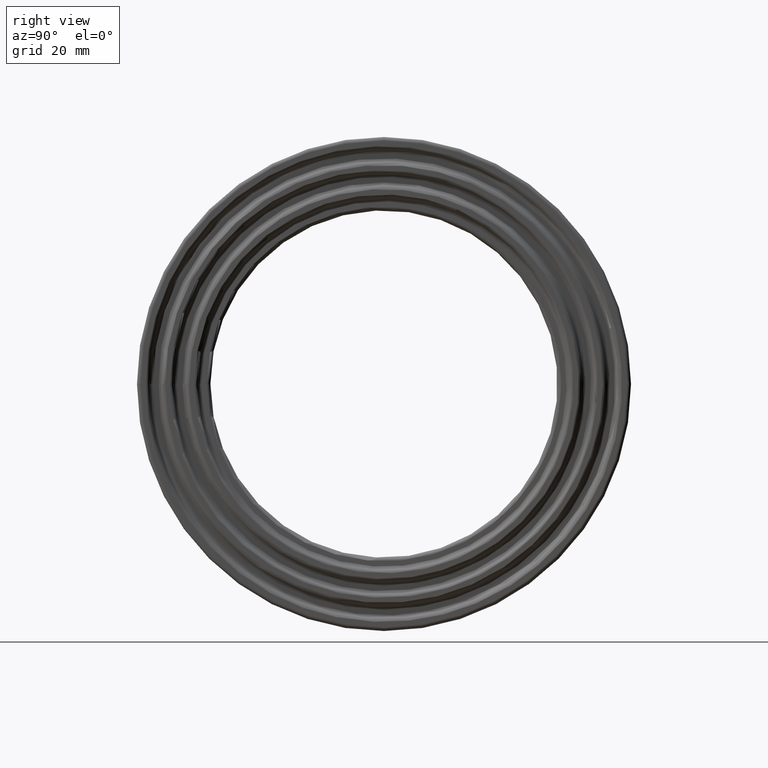
[diagram: clean part render]
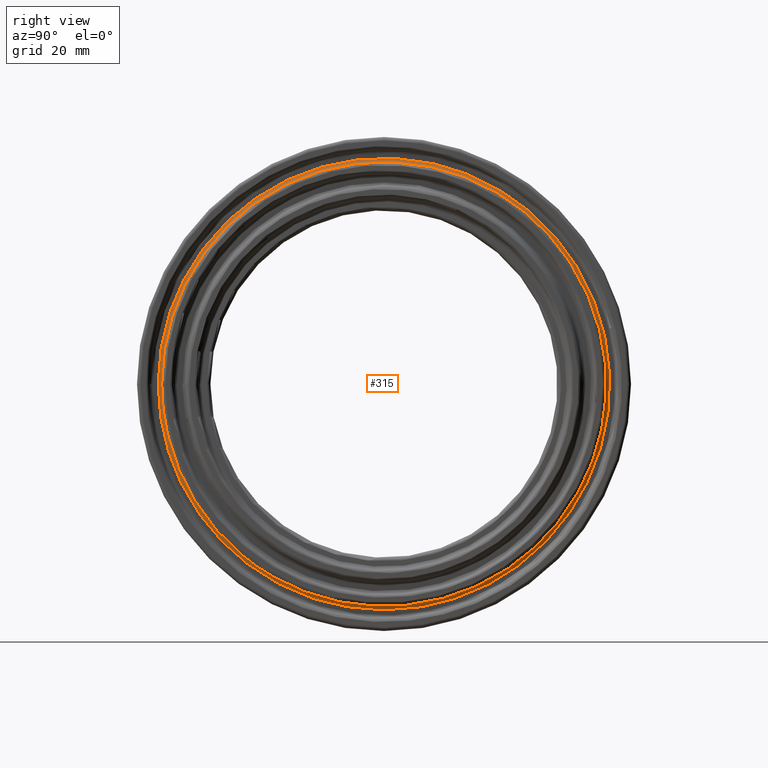
[diagram: same view with one face highlighted and labeled with its STEP entity id]
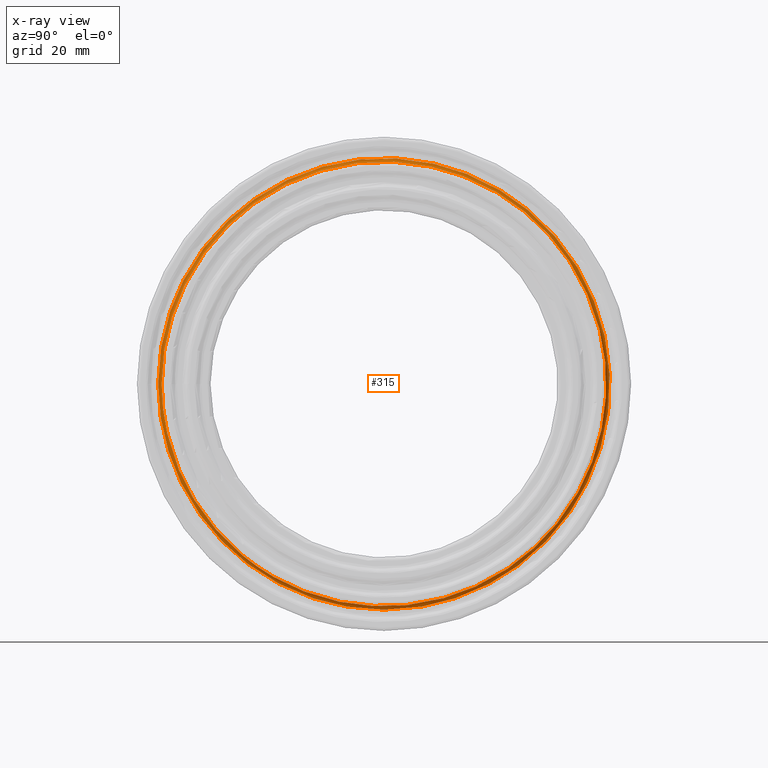
[diagram: x-ray of the same camera — body ghosted, the highlighted face saturated]
A machine part, right view. The second image highlights one B-rep face of the part: STEP entity #315.
The next image is the same camera in x-ray: the body ghosted, the highlighted face saturated — about 0% of this face is hidden behind the body in this view.
In plain terms, the highlighted face is a freeform B-spline surface patch.
Its self-contained STEP definition (entity closure, byte-faithful):
#17=B_SPLINE_SURFACE_WITH_KNOTS('',3,3,((#1210,#1211,#1212,#1213,#1214,
#1215,#1216,#1217,#1218,#1219,#1220,#1221,#1222,#1223,#1224,#1225,#1226,
#1227,#1228,#1229,#1230,#1231,#1232,#1233,#1234,#1235,#1236,#1237,#1238,
#1239,#1240,#1241,#1242,#1243,#1244,#1245,#1246,#1247,#1248,#1249,#1250,
#1251,#1252,#1253,#1254,#1255,#1256),(#1257,#1258,#1259,#1260,#1261,#1262,
#1263,#1264,#1265,#1266,#1267,#1268,#1269,#1270,#1271,#1272,#1273,#1274,
#1275,#1276,#1277,#1278,#1279,#1280,#1281,#1282,#1283,#1284,#1285,#1286,
#1287,#1288,#1289,#1290,#1291,#1292,#1293,#1294,#1295,#1296,#1297,#1298,
#1299,#1300,#1301,#1302,#1303),(#1304,#1305,#1306,#1307,#1308,#1309,#1310,
#1311,#1312,#1313,#1314,#1315,#1316,#1317,#1318,#1319,#1320,#1321,#1322,
#1323,#1324,#1325,#1326,#1327,#1328,#1329,#1330,#1331,#1332,#1333,#1334,
#1335,#1336,#1337,#1338,#1339,#1340,#1341,#1342,#1343,#1344,#1345,#1346,
#1347,#1348,#1349,#1350),(#1351,#1352,#1353,#1354,#1355,#1356,#1357,#1358,
#1359,#1360,#1361,#1362,#1363,#1364,#1365,#1366,#1367,#1368,#1369,#1370,
#1371,#1372,#1373,#1374,#1375,#1376,#1377,#1378,#1379,#1380,#1381,#1382,
#1383,#1384,#1385,#1386,#1387,#1388,#1389,#1390,#1391,#1392,#1393,#1394,
#1395,#1396,#1397),(#1398,#1399,#1400,#1401,#1402,#1403,#1404,#1405,#1406,
#1407,#1408,#1409,#1410,#1411,#1412,#1413,#1414,#1415,#1416,#1417,#1418,
#1419,#1420,#1421,#1422,#1423,#1424,#1425,#1426,#1427,#1428,#1429,#1430,
#1431,#1432,#1433,#1434,#1435,#1436,#1437,#1438,#1439,#1440,#1441,#1442,
#1443,#1444)),.UNSPECIFIED.,.F.,.T.,.F.,(4,1,4),(4,1,1,1,1,1,1,1,1,1,1,
1,1,1,1,1,1,1,1,1,1,1,1,1,1,1,1,1,1,1,1,1,1,1,1,1,1,1,1,1,1,1,1,1,4),(0.,
0.5,1.),(-24.1155685098152,-22.3930279019712,-21.5317575980493,-20.6704872941273,
-18.9479466862834,-17.2254060784394,-15.5028654705955,-14.6415951666735,
-13.7803248627515,-12.4884194068686,-11.1965139509856,-10.3352436470636,
-9.18688324183435,-8.03852283660506,-7.32079758333675,-6.89016243137577,
-5.74180202614647,-3.44508121568788,-3.15799111438056,-2.29672081045859,
-1.14836040522929,1.1483604052293,3.44508121568789,3.66039879166838,4.30635151960986,
5.16762182353183,6.89016243137577,7.32079758333675,8.61270303921971,10.3352436470637,
12.0577842549076,12.2731018308881,12.9190545588296,13.7803248627515,14.6415951666735,
15.1798891066247,15.5028654705955,17.2254060784394,18.0866763823614,18.3019939583419,
18.9479466862834,20.6704872941273,22.3930279019712,22.8236630539322,24.1155685098152),
 .UNSPECIFIED.);
#29=B_SPLINE_CURVE_WITH_KNOTS('',3,(#1163,#1164,#1165,#1166,#1167,#1168,
#1169,#1170,#1171,#1172,#1173,#1174,#1175,#1176,#1177,#1178,#1179,#1180,
#1181,#1182,#1183,#1184,#1185,#1186,#1187,#1188,#1189,#1190,#1191,#1192,
#1193,#1194,#1195,#1196,#1197,#1198,#1199,#1200,#1201,#1202,#1203,#1204,
#1205,#1206,#1207,#1208,#1209),.UNSPECIFIED.,.T.,.F.,(4,1,1,1,1,1,1,1,1,
1,1,1,1,1,1,1,1,1,1,1,1,1,1,1,1,1,1,1,1,1,1,1,1,1,1,1,1,1,1,1,1,1,1,1,4),
(-24.1155685098152,-22.3930279019712,-21.5317575980493,-20.6704872941273,
-18.9479466862834,-17.2254060784394,-15.5028654705955,-14.6415951666735,
-13.7803248627515,-12.4884194068686,-11.1965139509856,-10.3352436470636,
-9.18688324183435,-8.03852283660506,-7.32079758333675,-6.89016243137577,
-5.74180202614647,-3.44508121568788,-3.15799111438056,-2.29672081045859,
-1.14836040522929,1.1483604052293,3.44508121568789,3.66039879166838,4.30635151960986,
5.16762182353183,6.89016243137577,7.32079758333675,8.61270303921971,10.3352436470637,
12.0577842549076,12.2731018308881,12.9190545588296,13.7803248627515,14.6415951666735,
15.1798891066247,15.5028654705955,17.2254060784394,18.0866763823614,18.3019939583419,
18.9479466862834,20.6704872941273,22.3930279019712,22.8236630539322,24.1155685098152),
 .UNSPECIFIED.);
#30=B_SPLINE_CURVE_WITH_KNOTS('',3,(#1447,#1448,#1449,#1450,#1451,#1452,
#1453,#1454,#1455,#1456,#1457,#1458,#1459,#1460,#1461,#1462,#1463,#1464,
#1465,#1466,#1467,#1468,#1469,#1470,#1471,#1472,#1473,#1474,#1475,#1476,
#1477,#1478,#1479,#1480,#1481,#1482,#1483,#1484,#1485,#1486,#1487,#1488,
#1489,#1490,#1491,#1492,#1493),.UNSPECIFIED.,.T.,.F.,(4,1,1,1,1,1,1,1,1,
1,1,1,1,1,1,1,1,1,1,1,1,1,1,1,1,1,1,1,1,1,1,1,1,1,1,1,1,1,1,1,1,1,1,1,4),
(-24.1155685098152,-22.8236630539322,-22.3930279019712,-20.6704872941273,
-18.9479466862834,-18.3019939583419,-18.0866763823614,-17.2254060784394,
-15.5028654705955,-15.1798891066247,-14.6415951666735,-13.7803248627515,
-12.9190545588296,-12.2731018308881,-12.0577842549076,-10.3352436470637,
-8.61270303921971,-7.32079758333675,-6.89016243137577,-5.16762182353183,
-4.30635151960986,-3.66039879166838,-3.44508121568789,-1.1483604052293,
1.14836040522929,2.29672081045859,3.15799111438056,3.44508121568788,5.74180202614647,
6.89016243137577,7.32079758333675,8.03852283660506,9.18688324183435,10.3352436470636,
11.1965139509856,12.4884194068686,13.7803248627515,14.6415951666735,15.5028654705955,
17.2254060784394,18.9479466862834,20.6704872941273,21.5317575980493,22.3930279019712,
24.1155685098152),.UNSPECIFIED.);
#76=FACE_OUTER_BOUND('',#112,.T.);
#112=EDGE_LOOP('',(#253,#254,#255,#256));
#153=CIRCLE('',#351,1.25);
#179=VERTEX_POINT('',#1162);
#180=VERTEX_POINT('',#1445);
#209=EDGE_CURVE('',#179,#179,#29,.T.);
#210=EDGE_CURVE('',#179,#180,#153,.T.);
#211=EDGE_CURVE('',#180,#180,#30,.T.);
#253=ORIENTED_EDGE('',*,*,#210,.T.);
#254=ORIENTED_EDGE('',*,*,#211,.T.);
#255=ORIENTED_EDGE('',*,*,#210,.F.);
#256=ORIENTED_EDGE('',*,*,#209,.T.);
#315=ADVANCED_FACE('',(#76),#17,.T.);
#351=AXIS2_PLACEMENT_3D('',#1446,#415,#416);
#415=DIRECTION('center_axis',(0.,-0.000811828910623998,-0.999999670466856));
#416=DIRECTION('ref_axis',(-1.,0.,0.));
#1162=CARTESIAN_POINT('',(72.35,-77.2260381405542,0.0626943510752625));
#1163=CARTESIAN_POINT('Ctrl Pts',(72.35,-77.2257156556611,0.0655019064221409));
#1164=CARTESIAN_POINT('Ctrl Pts',(72.3500000000001,-77.2302131311799,-5.68484195212505));
#1165=CARTESIAN_POINT('Ctrl Pts',(72.3499999999999,-76.2759837863428,-14.349728647965));
#1166=CARTESIAN_POINT('Ctrl Pts',(72.3500000000001,-73.0477982730282,-25.5362169259614));
#1167=CARTESIAN_POINT('Ctrl Pts',(72.3499999999999,-68.676247152644,-36.1502139957239));
#1168=CARTESIAN_POINT('Ctrl Pts',(72.35,-60.8863324680431,-48.5517539542782));
#1169=CARTESIAN_POINT('Ctrl Pts',(72.35,-48.6387608700585,-60.8200987012577));
#1170=CARTESIAN_POINT('Ctrl Pts',(72.35,-36.2541099509333,-68.6199505065521));
#1171=CARTESIAN_POINT('Ctrl Pts',(72.3500000000001,-25.6199601676104,-73.0197607564574));
#1172=CARTESIAN_POINT('Ctrl Pts',(72.3499999999999,-15.8891175684609,-75.842078857682));
#1173=CARTESIAN_POINT('Ctrl Pts',(72.35,-4.34068847311276,-77.467626011477));
#1174=CARTESIAN_POINT('Ctrl Pts',(72.35,7.15946256221033,-77.1502266518685));
#1175=CARTESIAN_POINT('Ctrl Pts',(72.35,18.1607999307512,-75.292438574589));
#1176=CARTESIAN_POINT('Ctrl Pts',(72.3500000000001,28.3098901432782,-72.1576713616281));
#1177=CARTESIAN_POINT('Ctrl Pts',(72.35,37.3976681831924,-67.7862415920244));
#1178=CARTESIAN_POINT('Ctrl Pts',(72.35,43.9272246594291,-63.6086484939368));
#1179=CARTESIAN_POINT('Ctrl Pts',(72.3500000000001,50.1063136995343,-58.9505452621727));
#1180=CARTESIAN_POINT('Ctrl Pts',(72.3499999999999,59.6096525767822,-50.1540941798703));
#1181=CARTESIAN_POINT('Ctrl Pts',(72.35,66.7989397700751,-39.6260962538946));
#1182=CARTESIAN_POINT('Ctrl Pts',(72.35,71.5976136460745,-29.1430733940314));
#1183=CARTESIAN_POINT('Ctrl Pts',(72.35,74.2746651286182,-21.9522164460747));
#1184=CARTESIAN_POINT('Ctrl Pts',(72.3499999999999,77.5190896151062,-7.73919106076682));
#1185=CARTESIAN_POINT('Ctrl Pts',(72.35,77.5043926151827,11.62754337218));
#1186=CARTESIAN_POINT('Ctrl Pts',(72.35,72.7432105311623,27.1647975873435));
#1187=CARTESIAN_POINT('Ctrl Pts',(72.35,68.0471640332779,36.6057048643624));
#1188=CARTESIAN_POINT('Ctrl Pts',(72.35,65.1966098409544,41.6294082046029));
#1189=CARTESIAN_POINT('Ctrl Pts',(72.35,58.890210654922,50.5435382634758));
#1190=CARTESIAN_POINT('Ctrl Pts',(72.35,51.7390189063391,57.7100475124357));
#1191=CARTESIAN_POINT('Ctrl Pts',(72.35,42.5257262787719,64.6757478665368));
#1192=CARTESIAN_POINT('Ctrl Pts',(72.3499999999999,32.480407392815,70.6130122056103));
#1193=CARTESIAN_POINT('Ctrl Pts',(72.3500000000001,17.5040350034716,75.8822086601284));
#1194=CARTESIAN_POINT('Ctrl Pts',(72.35,5.12296884717933,77.3071380082777));
#1195=CARTESIAN_POINT('Ctrl Pts',(72.35,-3.49835486988401,77.188609518118));
#1196=CARTESIAN_POINT('Ctrl Pts',(72.35,-9.24125811546841,76.798277196346));
#1197=CARTESIAN_POINT('Ctrl Pts',(72.35,-17.1164223076368,75.4726265108081));
#1198=CARTESIAN_POINT('Ctrl Pts',(72.35,-24.4412397001347,73.3721750113236));
#1199=CARTESIAN_POINT('Ctrl Pts',(72.35,-29.8244836980005,71.2783934987796));
#1200=CARTESIAN_POINT('Ctrl Pts',(72.3500000000001,-37.6668459224763,67.7181692907764));
#1201=CARTESIAN_POINT('Ctrl Pts',(72.3499999999999,-46.0278430836225,62.4878818252415));
#1202=CARTESIAN_POINT('Ctrl Pts',(72.35,-53.0549394928554,56.2129109843134));
#1203=CARTESIAN_POINT('Ctrl Pts',(72.35,-57.0646021880887,52.0967688085544));
#1204=CARTESIAN_POINT('Ctrl Pts',(72.35,-62.7488383327838,45.5832530082079));
#1205=CARTESIAN_POINT('Ctrl Pts',(72.35,-70.1551298246211,33.8122560300906));
#1206=CARTESIAN_POINT('Ctrl Pts',(72.35,-74.4481170744449,21.5587235784817));
#1207=CARTESIAN_POINT('Ctrl Pts',(72.35,-76.7349457786991,10.1711583692102));
#1208=CARTESIAN_POINT('Ctrl Pts',(72.35,-77.222342549022,4.37825980033252));
#1209=CARTESIAN_POINT('Ctrl Pts',(72.35,-77.2257156556611,0.0655019064221409));
#1210=CARTESIAN_POINT('Ctrl Pts',(73.175,-76.050189157338,0.0645048392400997));
#1211=CARTESIAN_POINT('Ctrl Pts',(73.175,-76.0546181724793,-5.5983075341949));
#1212=CARTESIAN_POINT('Ctrl Pts',(73.175,-75.1149140653925,-14.1312977001103));
#1213=CARTESIAN_POINT('Ctrl Pts',(73.1750000000001,-71.9358678521178,-25.1475057381332));
#1214=CARTESIAN_POINT('Ctrl Pts',(73.1749999999999,-67.6308602935142,-35.599937004294));
#1215=CARTESIAN_POINT('Ctrl Pts',(73.1750000000001,-59.9595233527864,-47.8127012588288));
#1216=CARTESIAN_POINT('Ctrl Pts',(73.175,-47.8983837591063,-59.8942977935297));
#1217=CARTESIAN_POINT('Ctrl Pts',(73.175,-35.7022514597738,-67.5754205925303));
#1218=CARTESIAN_POINT('Ctrl Pts',(73.175,-25.2299742437856,-71.9082571214097));
#1219=CARTESIAN_POINT('Ctrl Pts',(73.175,-15.647254109144,-74.6876140187591));
#1220=CARTESIAN_POINT('Ctrl Pts',(73.1750000000001,-4.27461470121194,-76.2884171641972));
#1221=CARTESIAN_POINT('Ctrl Pts',(73.1749999999999,7.05048153323344,-75.975849243891));
#1222=CARTESIAN_POINT('Ctrl Pts',(73.1750000000001,17.884357020924,-74.1463403362451));
#1223=CARTESIAN_POINT('Ctrl Pts',(73.1749999999999,27.8789582218905,-71.0592904140032));
#1224=CARTESIAN_POINT('Ctrl Pts',(73.1750000000001,36.8284024981599,-66.7544023589836));
#1225=CARTESIAN_POINT('Ctrl Pts',(73.175,43.2585663485732,-62.6404004020636));
#1226=CARTESIAN_POINT('Ctrl Pts',(73.175,49.3435975629856,-58.0532026159061));
#1227=CARTESIAN_POINT('Ctrl Pts',(73.1750000000001,58.7022770275249,-49.3906507309198));
#1228=CARTESIAN_POINT('Ctrl Pts',(73.175,65.7821292025985,-39.0229095333046));
#1229=CARTESIAN_POINT('Ctrl Pts',(73.175,70.5077578727341,-28.6994587932938));
#1230=CARTESIAN_POINT('Ctrl Pts',(73.175,73.1440593935793,-21.6180607582939));
#1231=CARTESIAN_POINT('Ctrl Pts',(73.1749999999999,76.3390973910814,-7.62138542969851));
#1232=CARTESIAN_POINT('Ctrl Pts',(73.1750000000001,76.3246241082537,11.4505494106692));
#1233=CARTESIAN_POINT('Ctrl Pts',(73.1749999999999,71.6359165316641,26.7512962152372));
#1234=CARTESIAN_POINT('Ctrl Pts',(73.175,67.0113530501394,36.0484944106617));
#1235=CARTESIAN_POINT('Ctrl Pts',(73.1749999999999,64.2041898702467,40.995727156282));
#1236=CARTESIAN_POINT('Ctrl Pts',(73.1750000000001,57.9937864194332,49.7741667135551));
#1237=CARTESIAN_POINT('Ctrl Pts',(73.175,50.9514498018606,56.8315876691778));
#1238=CARTESIAN_POINT('Ctrl Pts',(73.175,41.8784015155541,63.69125643424));
#1239=CARTESIAN_POINT('Ctrl Pts',(73.175,31.9859920385199,69.5381439927442));
#1240=CARTESIAN_POINT('Ctrl Pts',(73.175,17.2375893409166,74.727132967091));
#1241=CARTESIAN_POINT('Ctrl Pts',(73.175,5.04498723731254,76.1303721024302));
#1242=CARTESIAN_POINT('Ctrl Pts',(73.175,-3.44510306360199,76.0136478478131));
#1243=CARTESIAN_POINT('Ctrl Pts',(73.175,-9.10058808476238,75.6292571477341));
#1244=CARTESIAN_POINT('Ctrl Pts',(73.1750000000001,-16.8558768687466,74.3237854595049));
#1245=CARTESIAN_POINT('Ctrl Pts',(73.1749999999999,-24.0691962082041,72.2553069417547));
#1246=CARTESIAN_POINT('Ctrl Pts',(73.175,-29.3704966991344,70.1933968806929));
#1247=CARTESIAN_POINT('Ctrl Pts',(73.1749999999999,-37.0934828255572,66.6873662513565));
#1248=CARTESIAN_POINT('Ctrl Pts',(73.175,-45.3272092501114,61.536693995048));
#1249=CARTESIAN_POINT('Ctrl Pts',(73.175,-52.2473395022141,55.3572404884312));
#1250=CARTESIAN_POINT('Ctrl Pts',(73.175,-56.1959672855974,51.3037540505619));
#1251=CARTESIAN_POINT('Ctrl Pts',(73.1749999999999,-61.7936782339371,44.8893867055654));
#1252=CARTESIAN_POINT('Ctrl Pts',(73.175,-69.087231477523,33.2975673335341));
#1253=CARTESIAN_POINT('Ctrl Pts',(73.175,-73.3148710614007,21.2305576220854));
#1254=CARTESIAN_POINT('Ctrl Pts',(73.175,-75.5668897581831,10.0163334371246));
#1255=CARTESIAN_POINT('Ctrl Pts',(73.175,-76.0468673959821,4.31161411931634));
#1256=CARTESIAN_POINT('Ctrl Pts',(73.175,-76.050189157338,0.0645048392400997));
#1257=CARTESIAN_POINT('Ctrl Pts',(72.9352151363665,-76.1368790407107,0.0645785451072336));
#1258=CARTESIAN_POINT('Ctrl Pts',(72.9352151363665,-76.1413133198468,-5.60467680038373));
#1259=CARTESIAN_POINT('Ctrl Pts',(72.9352151363664,-75.2005393290523,-14.14741025403));
#1260=CARTESIAN_POINT('Ctrl Pts',(72.9352151363665,-72.0178643779666,-25.1761782659593));
#1261=CARTESIAN_POINT('Ctrl Pts',(72.9352151363665,-67.7079590067259,-35.6405069848589));
#1262=CARTESIAN_POINT('Ctrl Pts',(72.9352151363666,-60.0278665470301,-47.8672095610854));
#1263=CARTESIAN_POINT('Ctrl Pts',(72.9352151363664,-47.9529889637263,-59.9625668289801));
#1264=CARTESIAN_POINT('Ctrl Pts',(72.9352151363666,-35.7429401434254,-67.6524548665739));
#1265=CARTESIAN_POINT('Ctrl Pts',(72.9352151363665,-25.2587351708165,-71.9902251374375));
#1266=CARTESIAN_POINT('Ctrl Pts',(72.9352151363665,-15.6650945850424,-74.7727494794673));
#1267=CARTESIAN_POINT('Ctrl Pts',(72.9352151363666,-4.27948266780687,-76.37537974747));
#1268=CARTESIAN_POINT('Ctrl Pts',(72.9352151363665,7.05850931969731,-76.0624543161134));
#1269=CARTESIAN_POINT('Ctrl Pts',(72.9352151363664,17.9047517026015,-74.2308587116865));
#1270=CARTESIAN_POINT('Ctrl Pts',(72.9352151363666,27.9107398788682,-71.1402903829245));
#1271=CARTESIAN_POINT('Ctrl Pts',(72.9352151363664,36.8703784529968,-66.8304974586504));
#1272=CARTESIAN_POINT('Ctrl Pts',(72.9352151363665,43.3078860278818,-62.7117998154657));
#1273=CARTESIAN_POINT('Ctrl Pts',(72.9352151363665,49.3998298447956,-58.119386276053));
#1274=CARTESIAN_POINT('Ctrl Pts',(72.9352151363665,58.7691953093537,-49.4469591294831));
#1275=CARTESIAN_POINT('Ctrl Pts',(72.9352151363665,65.8571202416368,-39.06737480376));
#1276=CARTESIAN_POINT('Ctrl Pts',(72.9352151363665,70.5881294630345,-28.7321757892203));
#1277=CARTESIAN_POINT('Ctrl Pts',(72.9352151363665,73.2274370790749,-21.6427082668258));
#1278=CARTESIAN_POINT('Ctrl Pts',(72.9352151363666,76.4261127223249,-7.63007019109641));
#1279=CARTESIAN_POINT('Ctrl Pts',(72.9352151363664,76.4116342478466,11.4635944481818));
#1280=CARTESIAN_POINT('Ctrl Pts',(72.9352151363666,71.7175658426314,26.7818017002246));
#1281=CARTESIAN_POINT('Ctrl Pts',(72.9352151363665,67.0877405340327,36.0895874569411));
#1282=CARTESIAN_POINT('Ctrl Pts',(72.9352151363665,64.277375275954,41.0424562876907));
#1283=CARTESIAN_POINT('Ctrl Pts',(72.9352151363665,58.0599000487577,49.8309021827817));
#1284=CARTESIAN_POINT('Ctrl Pts',(72.9352151363666,51.009523339586,56.8963718742181));
#1285=CARTESIAN_POINT('Ctrl Pts',(72.9352151363665,41.9261448870786,63.7638568392081));
#1286=CARTESIAN_POINT('Ctrl Pts',(72.9352151363665,32.0224472314358,69.6174096007182));
#1287=CARTESIAN_POINT('Ctrl Pts',(72.9352151363665,17.2572505509727,74.8123158665712));
#1288=CARTESIAN_POINT('Ctrl Pts',(72.9352151363665,5.0507202907622,76.2171529181241));
#1289=CARTESIAN_POINT('Ctrl Pts',(72.9352151363665,-3.44902891826622,76.100296778321));
#1290=CARTESIAN_POINT('Ctrl Pts',(72.9352151363665,-9.11094382892385,75.7154684423278));
#1291=CARTESIAN_POINT('Ctrl Pts',(72.9352151363665,-16.8751054733966,74.4085059530586));
#1292=CARTESIAN_POINT('Ctrl Pts',(72.9352151363665,-24.0966327618789,72.3376694561469));
#1293=CARTESIAN_POINT('Ctrl Pts',(72.9352151363665,-29.4039832355564,70.2734087796152));
#1294=CARTESIAN_POINT('Ctrl Pts',(72.9352151363665,-37.135732774375,66.7633974755179));
#1295=CARTESIAN_POINT('Ctrl Pts',(72.9352151363664,-45.3788995375602,61.606831498685));
#1296=CARTESIAN_POINT('Ctrl Pts',(72.9352151363665,-52.3068998608905,55.4203362260986));
#1297=CARTESIAN_POINT('Ctrl Pts',(72.9352151363665,-56.2600218106305,51.3622413006677));
#1298=CARTESIAN_POINT('Ctrl Pts',(72.9352151363665,-61.864110845069,44.9405593662216));
#1299=CARTESIAN_POINT('Ctrl Pts',(72.9352151363665,-69.1659876338463,33.335528616954));
#1300=CARTESIAN_POINT('Ctrl Pts',(72.9352151363665,-73.3984434910224,21.2547460280513));
#1301=CARTESIAN_POINT('Ctrl Pts',(72.9352151363665,-75.6530288993182,10.0277613354832));
#1302=CARTESIAN_POINT('Ctrl Pts',(72.9352151363665,-76.1335533313586,4.31652005422545));
#1303=CARTESIAN_POINT('Ctrl Pts',(72.9352151363665,-76.1368790407107,0.0645785451072336));
#1304=CARTESIAN_POINT('Ctrl Pts',(72.5112407298254,-76.4616173270889,0.0648537478254331));
#1305=CARTESIAN_POINT('Ctrl Pts',(72.5112407298254,-76.4660702301349,-5.62859828139735));
#1306=CARTESIAN_POINT('Ctrl Pts',(72.5112407298254,-75.5212819292859,-14.2077459637374));
#1307=CARTESIAN_POINT('Ctrl Pts',(72.5112407298254,-72.3250388850298,-25.2835503355567));
#1308=CARTESIAN_POINT('Ctrl Pts',(72.5112407298255,-67.9967382170645,-35.7925346519746));
#1309=CARTESIAN_POINT('Ctrl Pts',(72.5112407298253,-60.2839033819571,-48.071363687467));
#1310=CARTESIAN_POINT('Ctrl Pts',(72.5112407298255,-48.1575099859866,-60.2183248903101));
#1311=CARTESIAN_POINT('Ctrl Pts',(72.5112407298254,-35.8954019221533,-67.9409990104557));
#1312=CARTESIAN_POINT('Ctrl Pts',(72.5112407298253,-25.3664668895559,-72.2972777785641));
#1313=CARTESIAN_POINT('Ctrl Pts',(72.5112407298254,-15.7319036714363,-75.0916711293903));
#1314=CARTESIAN_POINT('Ctrl Pts',(72.5112407298254,-4.29774176263043,-76.701133750193));
#1315=CARTESIAN_POINT('Ctrl Pts',(72.5112407298254,7.08862740098231,-76.3868752619524));
#1316=CARTESIAN_POINT('Ctrl Pts',(72.5112407298253,17.9811078157233,-74.54746920904));
#1317=CARTESIAN_POINT('Ctrl Pts',(72.5112407298255,28.0297813671767,-71.4437183025652));
#1318=CARTESIAN_POINT('Ctrl Pts',(72.5112407298253,37.0276441807419,-67.1155402187236));
#1319=CARTESIAN_POINT('Ctrl Pts',(72.5112407298254,43.4925902108218,-62.9792837638473));
#1320=CARTESIAN_POINT('Ctrl Pts',(72.5112407298254,49.6105492114674,-58.3672649697493));
#1321=CARTESIAN_POINT('Ctrl Pts',(72.5112407298254,59.0198526254693,-49.6578493275867));
#1322=CARTESIAN_POINT('Ctrl Pts',(72.5112407298253,66.1380056736417,-39.2340275342721));
#1323=CARTESIAN_POINT('Ctrl Pts',(72.5112407298253,70.8892018878723,-28.854720794448));
#1324=CARTESIAN_POINT('Ctrl Pts',(72.5112407298254,73.5397653569242,-21.7350118205234));
#1325=CARTESIAN_POINT('Ctrl Pts',(72.5112407298253,76.7520898544996,-7.66261776445237));
#1326=CARTESIAN_POINT('Ctrl Pts',(72.5112407298254,76.7375344457738,11.5124989108834));
#1327=CARTESIAN_POINT('Ctrl Pts',(72.5112407298255,72.0234666344213,26.896015627283));
#1328=CARTESIAN_POINT('Ctrl Pts',(72.5112407298253,67.3738811759901,36.2435147567836));
#1329=CARTESIAN_POINT('Ctrl Pts',(72.5112407298253,64.5515321057364,41.2175129244289));
#1330=CARTESIAN_POINT('Ctrl Pts',(72.5112407298254,58.3075281132915,50.0434435327753));
#1331=CARTESIAN_POINT('Ctrl Pts',(72.5112407298254,51.2270969974296,57.1390434857404));
#1332=CARTESIAN_POINT('Ctrl Pts',(72.5112407298254,42.1049597800212,64.0358238260348));
#1333=CARTESIAN_POINT('Ctrl Pts',(72.5112407298254,32.1590367921348,69.914342681836));
#1334=CARTESIAN_POINT('Ctrl Pts',(72.5112407298254,17.3308398715514,75.1314030643908));
#1335=CARTESIAN_POINT('Ctrl Pts',(72.5112407298254,5.07228640084132,76.5422342169188));
#1336=CARTESIAN_POINT('Ctrl Pts',(72.5112407298253,-3.46374133571258,76.4248780935749));
#1337=CARTESIAN_POINT('Ctrl Pts',(72.5112407298254,-9.14982797265088,76.0384076765889));
#1338=CARTESIAN_POINT('Ctrl Pts',(72.5112407298254,-16.9470615023614,74.7258743541025));
#1339=CARTESIAN_POINT('Ctrl Pts',(72.5112407298254,-24.1994095014926,72.6462054970513));
#1340=CARTESIAN_POINT('Ctrl Pts',(72.5112407298254,-29.5293874217075,70.5731406736142));
#1341=CARTESIAN_POINT('Ctrl Pts',(72.5112407298254,-37.2941681143337,67.0481372054934));
#1342=CARTESIAN_POINT('Ctrl Pts',(72.5112407298255,-45.5724201307798,61.8696076366574));
#1343=CARTESIAN_POINT('Ctrl Pts',(72.5112407298253,-52.5299941446077,55.6567228094349));
#1344=CARTESIAN_POINT('Ctrl Pts',(72.5112407298254,-56.4999861612583,51.5813030953855));
#1345=CARTESIAN_POINT('Ctrl Pts',(72.5112407298252,-62.1279814145456,45.1322352632671));
#1346=CARTESIAN_POINT('Ctrl Pts',(72.5112407298255,-69.4609892117321,33.4777039221517));
#1347=CARTESIAN_POINT('Ctrl Pts',(72.5112407298254,-73.7115010963931,21.3454181929128));
#1348=CARTESIAN_POINT('Ctrl Pts',(72.5112407298254,-75.9757032411299,10.0705178928136));
#1349=CARTESIAN_POINT('Ctrl Pts',(72.5112407298253,-76.4582776498044,4.33494276974251));
#1350=CARTESIAN_POINT('Ctrl Pts',(72.5112407298254,-76.4616173270889,0.0648537478254331));
#1351=CARTESIAN_POINT('Ctrl Pts',(72.35,-76.9707416960581,0.0652856744774842));
#1352=CARTESIAN_POINT('Ctrl Pts',(72.3500000000001,-76.9752243636677,-5.6660701193983));
#1353=CARTESIAN_POINT('Ctrl Pts',(72.3499999999999,-76.0241458178128,-14.3023513672089));
#1354=CARTESIAN_POINT('Ctrl Pts',(72.3500000000001,-72.8066177679155,-25.4519060239728));
#1355=CARTESIAN_POINT('Ctrl Pts',(72.3499999999999,-68.4495018914893,-36.0308558417289));
#1356=CARTESIAN_POINT('Ctrl Pts',(72.35,-60.6853048517376,-48.3914532354829));
#1357=CARTESIAN_POINT('Ctrl Pts',(72.35,-48.4781727358877,-60.6192898039196));
#1358=CARTESIAN_POINT('Ctrl Pts',(72.35,-36.1344091642498,-68.3933908801266));
#1359=CARTESIAN_POINT('Ctrl Pts',(72.3500000000001,-25.5353716981616,-72.7786733901275));
#1360=CARTESIAN_POINT('Ctrl Pts',(72.3499999999999,-15.8366577074584,-75.5916729789876));
#1361=CARTESIAN_POINT('Ctrl Pts',(72.35,-4.3263560473606,-77.2118535623843));
#1362=CARTESIAN_POINT('Ctrl Pts',(72.35,7.13582262628168,-76.8955019185983));
#1363=CARTESIAN_POINT('Ctrl Pts',(72.35,18.1008405109296,-75.0438474112797));
#1364=CARTESIAN_POINT('Ctrl Pts',(72.3500000000001,28.2164206273774,-71.9194302726224));
#1365=CARTESIAN_POINT('Ctrl Pts',(72.35,37.2741924265135,-67.5624339675526));
#1366=CARTESIAN_POINT('Ctrl Pts',(72.35,43.782193126421,-63.3986327371098));
#1367=CARTESIAN_POINT('Ctrl Pts',(72.3500000000001,49.9408762912913,-58.7559115651012));
#1368=CARTESIAN_POINT('Ctrl Pts',(72.3499999999999,59.4128417153704,-49.988503325389));
#1369=CARTESIAN_POINT('Ctrl Pts',(72.35,66.5783927042619,-39.4952606186895));
#1370=CARTESIAN_POINT('Ctrl Pts',(72.35,71.3612217442149,-29.0468529896604));
#1371=CARTESIAN_POINT('Ctrl Pts',(72.35,74.029434666748,-21.8797383934712));
#1372=CARTESIAN_POINT('Ctrl Pts',(72.3499999999999,77.2631462873299,-7.71363824002426));
#1373=CARTESIAN_POINT('Ctrl Pts',(72.35,77.2484999793671,11.5891516065978));
#1374=CARTESIAN_POINT('Ctrl Pts',(72.35,72.5030346589775,27.0751105649775));
#1375=CARTESIAN_POINT('Ctrl Pts',(72.35,67.8224948298895,36.4848450820381));
#1376=CARTESIAN_POINT('Ctrl Pts',(72.35,64.9813518132485,41.4919611738038));
#1377=CARTESIAN_POINT('Ctrl Pts',(72.35,58.6957757216388,50.3766596563511));
#1378=CARTESIAN_POINT('Ctrl Pts',(72.35,51.5681924630678,57.5195082029387));
#1379=CARTESIAN_POINT('Ctrl Pts',(72.35,42.3853214480949,64.4622094953991));
#1380=CARTESIAN_POINT('Ctrl Pts',(72.3499999999999,32.3731666480607,70.3798709972144));
#1381=CARTESIAN_POINT('Ctrl Pts',(72.3500000000001,17.4462447306184,75.6316707443175));
#1382=CARTESIAN_POINT('Ctrl Pts',(72.35,5.10605108436148,77.0518951289917));
#1383=CARTESIAN_POINT('Ctrl Pts',(72.35,-3.4868042147243,76.933758205114));
#1384=CARTESIAN_POINT('Ctrl Pts',(72.35,-9.21074305540982,76.5447147345789));
#1385=CARTESIAN_POINT('Ctrl Pts',(72.35,-17.0599122857832,75.2234403969114));
#1386=CARTESIAN_POINT('Ctrl Pts',(72.35,-24.3605427489924,73.1299238770164));
#1387=CARTESIAN_POINT('Ctrl Pts',(72.35,-29.7260143864823,71.0430552982399));
#1388=CARTESIAN_POINT('Ctrl Pts',(72.3500000000001,-37.5424760291024,67.4945888222775));
#1389=CARTESIAN_POINT('Ctrl Pts',(72.3499999999999,-45.8758784047689,62.2815657453469));
#1390=CARTESIAN_POINT('Ctrl Pts',(72.35,-52.8797701580741,56.0273132226696));
#1391=CARTESIAN_POINT('Ctrl Pts',(72.35,-56.876192943027,51.9247635156904));
#1392=CARTESIAN_POINT('Ctrl Pts',(72.35,-62.5416610761778,45.4327526638058));
#1393=CARTESIAN_POINT('Ctrl Pts',(72.35,-69.923501264761,33.7006200709766));
#1394=CARTESIAN_POINT('Ctrl Pts',(72.35,-74.2023139379597,21.4875413774294));
#1395=CARTESIAN_POINT('Ctrl Pts',(72.35,-76.4815922131704,10.1375785071217));
#1396=CARTESIAN_POINT('Ctrl Pts',(72.35,-76.9673796953508,4.36380251988431));
#1397=CARTESIAN_POINT('Ctrl Pts',(72.35,-76.9707416960581,0.0652856744774842));
#1398=CARTESIAN_POINT('Ctrl Pts',(72.35,-77.2257156556611,0.0655019064221409));
#1399=CARTESIAN_POINT('Ctrl Pts',(72.3500000000001,-77.2302131311799,-5.68484195212505));
#1400=CARTESIAN_POINT('Ctrl Pts',(72.3499999999999,-76.2759837863428,-14.349728647965));
#1401=CARTESIAN_POINT('Ctrl Pts',(72.3500000000001,-73.0477982730282,-25.5362169259614));
#1402=CARTESIAN_POINT('Ctrl Pts',(72.3499999999999,-68.676247152644,-36.1502139957239));
#1403=CARTESIAN_POINT('Ctrl Pts',(72.35,-60.8863324680431,-48.5517539542782));
#1404=CARTESIAN_POINT('Ctrl Pts',(72.35,-48.6387608700585,-60.8200987012577));
#1405=CARTESIAN_POINT('Ctrl Pts',(72.35,-36.2541099509333,-68.6199505065521));
#1406=CARTESIAN_POINT('Ctrl Pts',(72.3500000000001,-25.6199601676104,-73.0197607564574));
#1407=CARTESIAN_POINT('Ctrl Pts',(72.3499999999999,-15.8891175684609,-75.842078857682));
#1408=CARTESIAN_POINT('Ctrl Pts',(72.35,-4.34068847311276,-77.467626011477));
#1409=CARTESIAN_POINT('Ctrl Pts',(72.35,7.15946256221033,-77.1502266518685));
#1410=CARTESIAN_POINT('Ctrl Pts',(72.35,18.1607999307512,-75.292438574589));
#1411=CARTESIAN_POINT('Ctrl Pts',(72.3500000000001,28.3098901432782,-72.1576713616281));
#1412=CARTESIAN_POINT('Ctrl Pts',(72.35,37.3976681831924,-67.7862415920244));
#1413=CARTESIAN_POINT('Ctrl Pts',(72.35,43.9272246594291,-63.6086484939368));
#1414=CARTESIAN_POINT('Ctrl Pts',(72.3500000000001,50.1063136995343,-58.9505452621727));
#1415=CARTESIAN_POINT('Ctrl Pts',(72.3499999999999,59.6096525767822,-50.1540941798703));
#1416=CARTESIAN_POINT('Ctrl Pts',(72.35,66.7989397700751,-39.6260962538946));
#1417=CARTESIAN_POINT('Ctrl Pts',(72.35,71.5976136460745,-29.1430733940314));
#1418=CARTESIAN_POINT('Ctrl Pts',(72.35,74.2746651286182,-21.9522164460747));
#1419=CARTESIAN_POINT('Ctrl Pts',(72.3499999999999,77.5190896151062,-7.73919106076682));
#1420=CARTESIAN_POINT('Ctrl Pts',(72.35,77.5043926151827,11.62754337218));
#1421=CARTESIAN_POINT('Ctrl Pts',(72.35,72.7432105311623,27.1647975873435));
#1422=CARTESIAN_POINT('Ctrl Pts',(72.35,68.0471640332779,36.6057048643624));
#1423=CARTESIAN_POINT('Ctrl Pts',(72.35,65.1966098409544,41.6294082046029));
#1424=CARTESIAN_POINT('Ctrl Pts',(72.35,58.890210654922,50.5435382634758));
#1425=CARTESIAN_POINT('Ctrl Pts',(72.35,51.7390189063391,57.7100475124357));
#1426=CARTESIAN_POINT('Ctrl Pts',(72.35,42.5257262787719,64.6757478665368));
#1427=CARTESIAN_POINT('Ctrl Pts',(72.3499999999999,32.480407392815,70.6130122056103));
#1428=CARTESIAN_POINT('Ctrl Pts',(72.3500000000001,17.5040350034716,75.8822086601284));
#1429=CARTESIAN_POINT('Ctrl Pts',(72.35,5.12296884717933,77.3071380082777));
#1430=CARTESIAN_POINT('Ctrl Pts',(72.35,-3.49835486988401,77.188609518118));
#1431=CARTESIAN_POINT('Ctrl Pts',(72.35,-9.24125811546841,76.798277196346));
#1432=CARTESIAN_POINT('Ctrl Pts',(72.35,-17.1164223076368,75.4726265108081));
#1433=CARTESIAN_POINT('Ctrl Pts',(72.35,-24.4412397001347,73.3721750113236));
#1434=CARTESIAN_POINT('Ctrl Pts',(72.35,-29.8244836980005,71.2783934987796));
#1435=CARTESIAN_POINT('Ctrl Pts',(72.3500000000001,-37.6668459224763,67.7181692907764));
#1436=CARTESIAN_POINT('Ctrl Pts',(72.3499999999999,-46.0278430836225,62.4878818252415));
#1437=CARTESIAN_POINT('Ctrl Pts',(72.35,-53.0549394928554,56.2129109843134));
#1438=CARTESIAN_POINT('Ctrl Pts',(72.35,-57.0646021880887,52.0967688085544));
#1439=CARTESIAN_POINT('Ctrl Pts',(72.35,-62.7488383327838,45.5832530082079));
#1440=CARTESIAN_POINT('Ctrl Pts',(72.35,-70.1551298246211,33.8122560300906));
#1441=CARTESIAN_POINT('Ctrl Pts',(72.35,-74.4481170744449,21.5587235784817));
#1442=CARTESIAN_POINT('Ctrl Pts',(72.35,-76.7349457786991,10.1711583692102));
#1443=CARTESIAN_POINT('Ctrl Pts',(72.35,-77.222342549022,4.37825980033252));
#1444=CARTESIAN_POINT('Ctrl Pts',(72.35,-77.2257156556611,0.0655019064221409));
#1445=CARTESIAN_POINT('',(73.175,-76.05050673338,0.0617400203790884));
#1446=CARTESIAN_POINT('Origin',(73.6,-77.2260381405542,0.0626943510752625));
#1447=CARTESIAN_POINT('Ctrl Pts',(73.175,-76.050189157338,0.0645048392400997));
#1448=CARTESIAN_POINT('Ctrl Pts',(73.175,-76.0468673959821,4.31161411931634));
#1449=CARTESIAN_POINT('Ctrl Pts',(73.175,-75.5668897581831,10.0163334371246));
#1450=CARTESIAN_POINT('Ctrl Pts',(73.175,-73.3148710614007,21.2305576220854));
#1451=CARTESIAN_POINT('Ctrl Pts',(73.175,-69.087231477523,33.2975673335341));
#1452=CARTESIAN_POINT('Ctrl Pts',(73.1749999999999,-61.7936782339371,44.8893867055654));
#1453=CARTESIAN_POINT('Ctrl Pts',(73.175,-56.1959672855974,51.3037540505619));
#1454=CARTESIAN_POINT('Ctrl Pts',(73.175,-52.2473395022141,55.3572404884312));
#1455=CARTESIAN_POINT('Ctrl Pts',(73.175,-45.3272092501114,61.536693995048));
#1456=CARTESIAN_POINT('Ctrl Pts',(73.1749999999999,-37.0934828255572,66.6873662513565));
#1457=CARTESIAN_POINT('Ctrl Pts',(73.175,-29.3704966991344,70.1933968806929));
#1458=CARTESIAN_POINT('Ctrl Pts',(73.1749999999999,-24.0691962082041,72.2553069417547));
#1459=CARTESIAN_POINT('Ctrl Pts',(73.1750000000001,-16.8558768687466,74.3237854595049));
#1460=CARTESIAN_POINT('Ctrl Pts',(73.175,-9.10058808476238,75.6292571477341));
#1461=CARTESIAN_POINT('Ctrl Pts',(73.175,-3.44510306360199,76.0136478478131));
#1462=CARTESIAN_POINT('Ctrl Pts',(73.175,5.04498723731254,76.1303721024302));
#1463=CARTESIAN_POINT('Ctrl Pts',(73.175,17.2375893409166,74.727132967091));
#1464=CARTESIAN_POINT('Ctrl Pts',(73.175,31.9859920385199,69.5381439927442));
#1465=CARTESIAN_POINT('Ctrl Pts',(73.175,41.8784015155541,63.69125643424));
#1466=CARTESIAN_POINT('Ctrl Pts',(73.175,50.9514498018606,56.8315876691778));
#1467=CARTESIAN_POINT('Ctrl Pts',(73.1750000000001,57.9937864194332,49.7741667135551));
#1468=CARTESIAN_POINT('Ctrl Pts',(73.1749999999999,64.2041898702467,40.995727156282));
#1469=CARTESIAN_POINT('Ctrl Pts',(73.175,67.0113530501394,36.0484944106617));
#1470=CARTESIAN_POINT('Ctrl Pts',(73.1749999999999,71.6359165316641,26.7512962152372));
#1471=CARTESIAN_POINT('Ctrl Pts',(73.1750000000001,76.3246241082537,11.4505494106692));
#1472=CARTESIAN_POINT('Ctrl Pts',(73.1749999999999,76.3390973910814,-7.62138542969851));
#1473=CARTESIAN_POINT('Ctrl Pts',(73.175,73.1440593935793,-21.6180607582939));
#1474=CARTESIAN_POINT('Ctrl Pts',(73.175,70.5077578727341,-28.6994587932938));
#1475=CARTESIAN_POINT('Ctrl Pts',(73.175,65.7821292025985,-39.0229095333046));
#1476=CARTESIAN_POINT('Ctrl Pts',(73.1750000000001,58.7022770275249,-49.3906507309198));
#1477=CARTESIAN_POINT('Ctrl Pts',(73.175,49.3435975629856,-58.0532026159061));
#1478=CARTESIAN_POINT('Ctrl Pts',(73.175,43.2585663485732,-62.6404004020636));
#1479=CARTESIAN_POINT('Ctrl Pts',(73.1750000000001,36.8284024981599,-66.7544023589836));
#1480=CARTESIAN_POINT('Ctrl Pts',(73.1749999999999,27.8789582218905,-71.0592904140032));
#1481=CARTESIAN_POINT('Ctrl Pts',(73.1750000000001,17.884357020924,-74.1463403362451));
#1482=CARTESIAN_POINT('Ctrl Pts',(73.1749999999999,7.05048153323344,-75.975849243891));
#1483=CARTESIAN_POINT('Ctrl Pts',(73.1750000000001,-4.27461470121194,-76.2884171641972));
#1484=CARTESIAN_POINT('Ctrl Pts',(73.175,-15.647254109144,-74.6876140187591));
#1485=CARTESIAN_POINT('Ctrl Pts',(73.175,-25.2299742437856,-71.9082571214097));
#1486=CARTESIAN_POINT('Ctrl Pts',(73.175,-35.7022514597738,-67.5754205925303));
#1487=CARTESIAN_POINT('Ctrl Pts',(73.175,-47.8983837591063,-59.8942977935297));
#1488=CARTESIAN_POINT('Ctrl Pts',(73.1750000000001,-59.9595233527864,-47.8127012588288));
#1489=CARTESIAN_POINT('Ctrl Pts',(73.1749999999999,-67.6308602935142,-35.599937004294));
#1490=CARTESIAN_POINT('Ctrl Pts',(73.1750000000001,-71.9358678521178,-25.1475057381332));
#1491=CARTESIAN_POINT('Ctrl Pts',(73.175,-75.1149140653925,-14.1312977001103));
#1492=CARTESIAN_POINT('Ctrl Pts',(73.175,-76.0546181724793,-5.59830753419489));
#1493=CARTESIAN_POINT('Ctrl Pts',(73.175,-76.050189157338,0.0645048392400997));